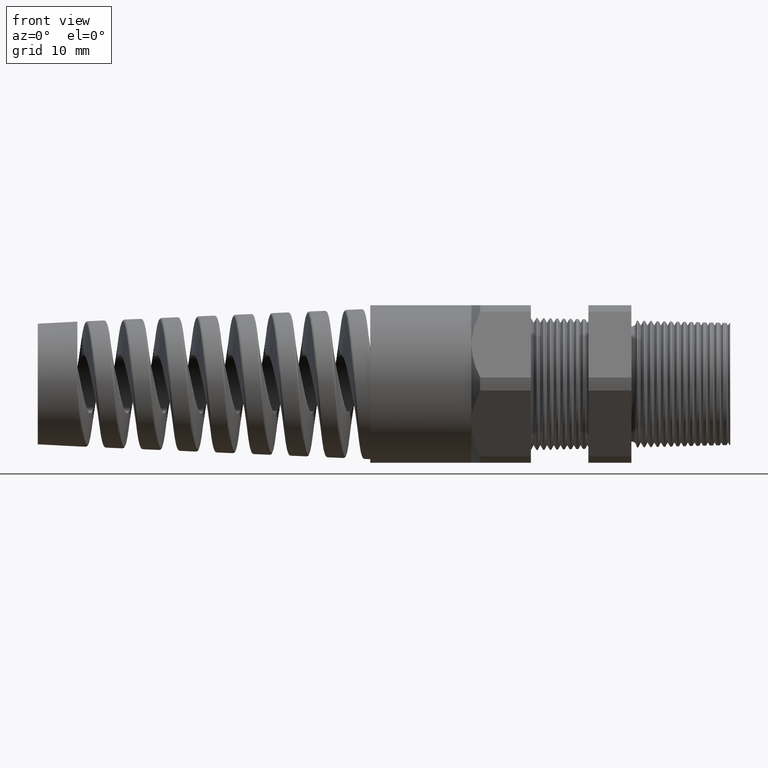
[diagram: clean part render]
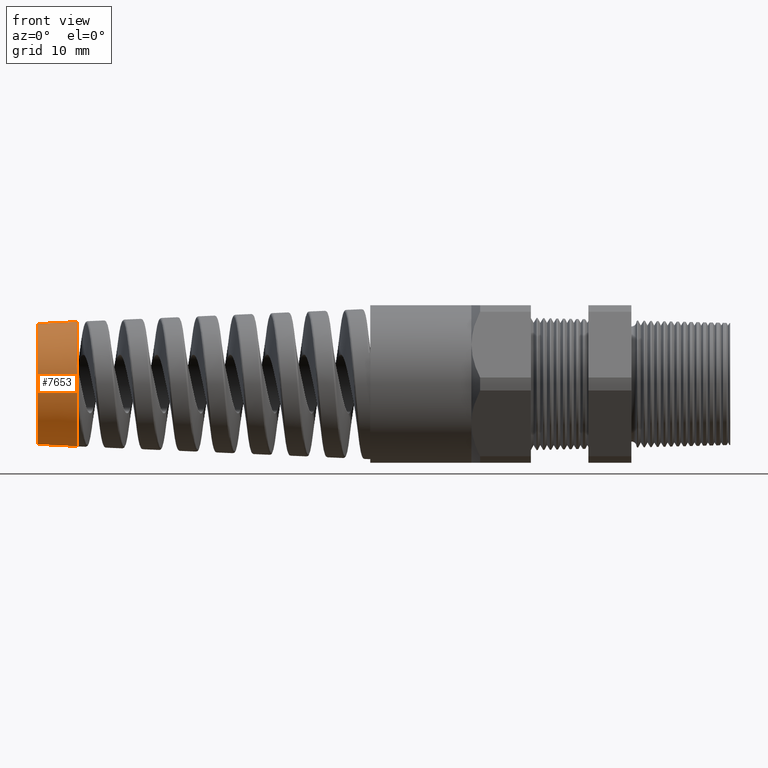
[diagram: same view with one face highlighted and labeled with its STEP entity id]
A machine part, front view. The second image highlights one B-rep face of the part: STEP entity #7653.
In plain terms, the highlighted conical surface has half-angle 3 deg.
Its self-contained STEP definition (entity closure, byte-faithful):
#40 = DIRECTION ( 'NONE',  ( 0.0000000000000000000, 0.0000000000000000000, -1.000000000000000000 ) ) ;
#41 = DIRECTION ( 'NONE',  ( 1.000000000000000000, 0.0000000000000000000, 0.0000000000000000000 ) ) ;
#42 = CARTESIAN_POINT ( 'NONE',  ( -3.613780000000000200, 0.0000000000000000000, 0.0000000000000000000 ) ) ;
#43 = AXIS2_PLACEMENT_3D ( 'NONE', #42, #41, #40 ) ;
#44 = CIRCLE ( 'NONE', #43, 0.3720344495207378300 ) ;
#45 = CARTESIAN_POINT ( 'NONE',  ( -3.613780000000000200, -0.3666973055244363600, -0.06279106426332614600 ) ) ;
#2322 = FACE_OUTER_BOUND ( 'NONE', #7666, .T. ) ;
#2360 = DIRECTION ( 'NONE',  ( 0.9986295347545738300, -6.409306129323724800E-018, -0.05233595624294395300 ) ) ;
#2361 = VECTOR ( 'NONE', #2360, 39.37007874015748900 ) ;
#2362 = CARTESIAN_POINT ( 'NONE',  ( -3.613780000000000200, -4.556107977781267100E-017, -0.3720344495207439900 ) ) ;
#2363 = LINE ( 'NONE', #2362, #2361 ) ;
#2364 = DIRECTION ( 'NONE',  ( 0.9986295347545738300, 0.0000000000000000000, 0.05233595624294395300 ) ) ;
#2365 = VECTOR ( 'NONE', #2364, 39.37007874015748900 ) ;
#2366 = CARTESIAN_POINT ( 'NONE',  ( -3.613780000000000200, 0.0000000000000000000, 0.3720344495207439900 ) ) ;
#2367 = LINE ( 'NONE', #2366, #2365 ) ;
#2368 = CARTESIAN_POINT ( 'NONE',  ( -3.850000472440945600, -4.480303624455206300E-017, -0.3596546591389232500 ) ) ;
#2369 = DIRECTION ( 'NONE',  ( 0.0000000000000000000, 0.0000000000000000000, 1.000000000000000000 ) ) ;
#2370 = DIRECTION ( 'NONE',  ( -1.000000000000000000, 0.0000000000000000000, 0.0000000000000000000 ) ) ;
#2371 = CARTESIAN_POINT ( 'NONE',  ( -3.613780000000000200, 0.0000000000000000000, 0.0000000000000000000 ) ) ;
#2372 = AXIS2_PLACEMENT_3D ( 'NONE', #2371, #2370, #2369 ) ;
#2373 = CIRCLE ( 'NONE', #2372, 0.3720344495207439900 ) ;
#2374 = CARTESIAN_POINT ( 'NONE',  ( -3.850000472440945600, 0.0000000000000000000, 0.3596546591389232500 ) ) ;
#2375 = DIRECTION ( 'NONE',  ( 0.0000000000000000000, 0.0000000000000000000, 1.000000000000000000 ) ) ;
#2376 = DIRECTION ( 'NONE',  ( -1.000000000000000000, 0.0000000000000000000, 0.0000000000000000000 ) ) ;
#2377 = CARTESIAN_POINT ( 'NONE',  ( -3.850000472440945600, 0.0000000000000000000, 0.0000000000000000000 ) ) ;
#2378 = AXIS2_PLACEMENT_3D ( 'NONE', #2377, #2376, #2375 ) ;
#2379 = CIRCLE ( 'NONE', #2378, 0.3596546591389232500 ) ;
#2385 = DIRECTION ( 'NONE',  ( 0.0000000000000000000, 0.0000000000000000000, 1.000000000000000000 ) ) ;
#2386 = DIRECTION ( 'NONE',  ( 1.000000000000000000, 0.0000000000000000000, 0.0000000000000000000 ) ) ;
#2387 = CARTESIAN_POINT ( 'NONE',  ( -3.613780000000000200, 0.0000000000000000000, 0.0000000000000000000 ) ) ;
#2388 = AXIS2_PLACEMENT_3D ( 'NONE', #2387, #2386, #2385 ) ;
#2389 = CONICAL_SURFACE ( 'NONE', #2388, 0.3720344495207439900, 0.05235987755983000100 ) ;
#2428 = CARTESIAN_POINT ( 'NONE',  ( -3.613780000000000200, 0.0000000000000000000, 0.3720344495207439900 ) ) ;
#4454 = VERTEX_POINT ( 'NONE', #11739 ) ;
#5033 = EDGE_CURVE ( 'NONE', #5034, #4454, #44, .T. ) ;
#5034 = VERTEX_POINT ( 'NONE', #45 ) ;
#7651 = ORIENTED_EDGE ( 'NONE', *, *, #7657, .F. ) ;
#7652 = ORIENTED_EDGE ( 'NONE', *, *, #5033, .F. ) ;
#7653 = ADVANCED_FACE ( 'NONE', ( #2322 ), #2389, .T. ) ;
#7655 = ORIENTED_EDGE ( 'NONE', *, *, #7662, .F. ) ;
#7656 = ORIENTED_EDGE ( 'NONE', *, *, #7663, .T. ) ;
#7657 = EDGE_CURVE ( 'NONE', #7660, #7658, #2379, .T. ) ;
#7658 = VERTEX_POINT ( 'NONE', #2374 ) ;
#7659 = EDGE_CURVE ( 'NONE', #5034, #7664, #2373, .T. ) ;
#7660 = VERTEX_POINT ( 'NONE', #2368 ) ;
#7661 = ORIENTED_EDGE ( 'NONE', *, *, #7659, .T. ) ;
#7662 = EDGE_CURVE ( 'NONE', #7658, #7664, #2367, .T. ) ;
#7663 = EDGE_CURVE ( 'NONE', #7660, #4454, #2363, .T. ) ;
#7664 = VERTEX_POINT ( 'NONE', #2428 ) ;
#7666 = EDGE_LOOP ( 'NONE', ( #7651, #7656, #7652, #7661, #7655 ) ) ;
#11739 = CARTESIAN_POINT ( 'NONE',  ( -3.613780000000000200, -4.556107977781267100E-017, -0.3720344495207439900 ) ) ;